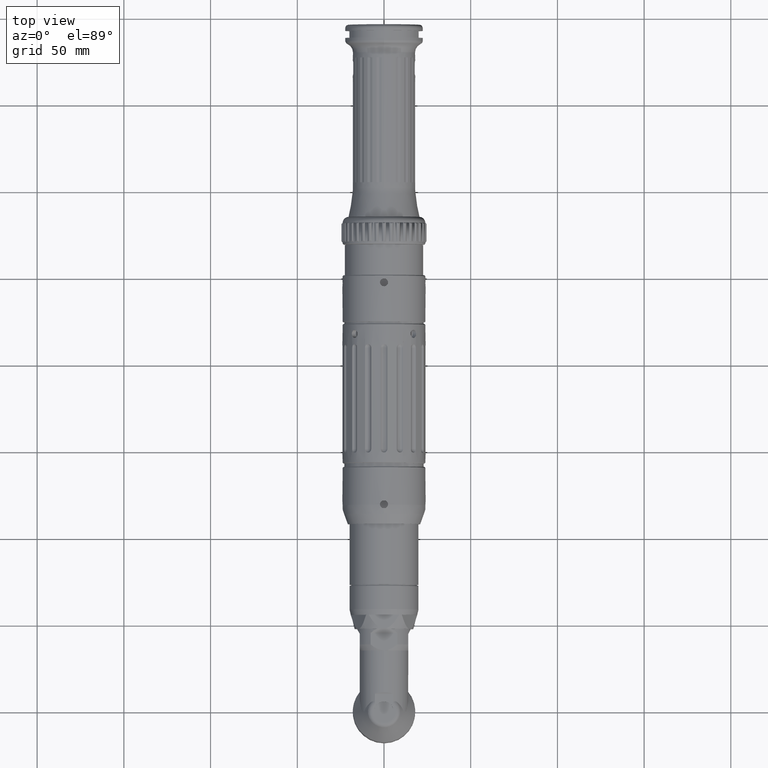
[diagram: clean part render]
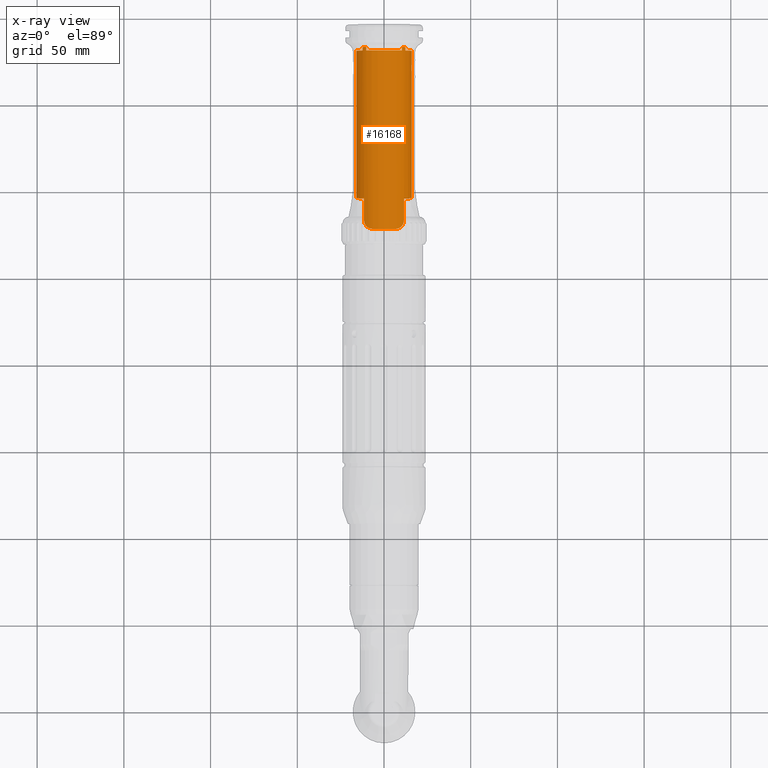
[diagram: x-ray — body ghosted, one internal face saturated and labeled with its STEP entity id]
A machine part, top view, then the same camera in x-ray: the body is ghosted and one INTERNAL B-rep face — a face not visible from any outside direction — is saturated and labeled: STEP entity #16168.
In plain terms, the highlighted cylindrical surface (bore or boss wall) has radius 16 mm, axis along (0, -1, -0).
Its self-contained STEP definition (entity closure, byte-faithful):
#253=ELLIPSE('',#17818,102.279251543994,16.);
#254=ELLIPSE('',#17819,102.279251543994,16.);
#255=ELLIPSE('',#17821,102.279251543994,16.);
#256=ELLIPSE('',#17823,102.279251543994,16.);
#653=LINE('',#25818,#1515);
#658=LINE('',#25850,#1520);
#929=LINE('',#27994,#1791);
#936=LINE('',#28006,#1798);
#942=LINE('',#28017,#1804);
#948=LINE('',#28028,#1810);
#963=LINE('',#28238,#1825);
#965=LINE('',#28242,#1827);
#967=LINE('',#28245,#1829);
#968=LINE('',#28249,#1830);
#972=LINE('',#28263,#1834);
#973=LINE('',#28288,#1835);
#974=LINE('',#28428,#1836);
#975=LINE('',#28431,#1837);
#976=LINE('',#28434,#1838);
#977=LINE('',#28437,#1839);
#978=LINE('',#28440,#1840);
#979=LINE('',#28466,#1841);
#980=LINE('',#28470,#1842);
#981=LINE('',#28496,#1843);
#1515=VECTOR('',#20614,10.);
#1520=VECTOR('',#20623,10.);
#1791=VECTOR('',#21666,10.);
#1798=VECTOR('',#21679,10.);
#1804=VECTOR('',#21691,10.);
#1810=VECTOR('',#21703,10.);
#1825=VECTOR('',#21810,10.);
#1827=VECTOR('',#21816,10.);
#1829=VECTOR('',#21820,10.);
#1830=VECTOR('',#21827,10.);
#1834=VECTOR('',#21845,10.);
#1835=VECTOR('',#21848,10.);
#1836=VECTOR('',#21853,10.);
#1837=VECTOR('',#21854,10.);
#1838=VECTOR('',#21855,10.);
#1839=VECTOR('',#21856,10.);
#1840=VECTOR('',#21857,10.);
#1841=VECTOR('',#21860,10.);
#1842=VECTOR('',#21863,10.);
#1843=VECTOR('',#21866,10.);
#2100=B_SPLINE_CURVE_WITH_KNOTS('',3,(#25829,#25830,#25831,#25832,#25833,
#25834,#25835,#25836,#25837,#25838,#25839,#25840),.UNSPECIFIED.,.F.,.F.,
(4,2,2,2,2,4),(1.60575531335487,1.70750990164224,1.8092644899296,2.01277366650434,
2.22696958037593,2.44116549424753),.UNSPECIFIED.);
#2102=B_SPLINE_CURVE_WITH_KNOTS('',3,(#25863,#25864,#25865,#25866,#25867,
#25868,#25869,#25870,#25871,#25872),.UNSPECIFIED.,.F.,.F.,(4,2,2,2,4),(-0.834926807319658,
-0.610737836602783,-0.386548865885909,-0.193274432942955,0.),
 .UNSPECIFIED.);
#2165=B_SPLINE_CURVE_WITH_KNOTS('',3,(#28265,#28266,#28267,#28268,#28269,
#28270,#28271,#28272,#28273,#28274),.UNSPECIFIED.,.F.,.F.,(4,2,2,2,4),(-0.47484788603311,
-0.350995445796024,-0.227143005558937,-0.113571502779469,0.),
 .UNSPECIFIED.);
#2166=B_SPLINE_CURVE_WITH_KNOTS('',3,(#28278,#28279,#28280,#28281,#28282,
#28283,#28284,#28285,#28286,#28287),.UNSPECIFIED.,.F.,.F.,(4,2,2,2,4),(0.934707650493438,
1.05123163150248,1.16775561251153,1.28867704578371,1.40959847905589),
 .UNSPECIFIED.);
#2167=B_SPLINE_CURVE_WITH_KNOTS('',3,(#28290,#28291,#28292,#28293,#28294,
#28295,#28296,#28297,#28298,#28299,#28300,#28301,#28302,#28303,#28304,#28305,
#28306,#28307,#28308,#28309,#28310,#28311,#28312,#28313,#28314,#28315,#28316,
#28317,#28318,#28319,#28320,#28321,#28322,#28323),.UNSPECIFIED.,.T.,.F.,
(4,2,2,2,2,2,2,2,2,2,2,2,2,2,2,2,4),(0.,0.0754224115710585,0.150844823142117,
0.226266604627874,0.30168838611363,0.377110167599387,0.452531949085144,
0.527954360656202,0.603376772227261,0.678799183798319,0.754221595369378,
0.829643376855137,0.905065158340896,0.980486939826654,1.05590872131241,
1.13133113288347,1.20675354445453),.UNSPECIFIED.);
#2168=B_SPLINE_CURVE_WITH_KNOTS('',3,(#28325,#28326,#28327,#28328,#28329,
#28330,#28331,#28332,#28333,#28334,#28335,#28336,#28337,#28338,#28339,#28340,
#28341,#28342,#28343,#28344,#28345,#28346,#28347,#28348,#28349,#28350,#28351,
#28352,#28353,#28354,#28355,#28356,#28357,#28358),.UNSPECIFIED.,.T.,.F.,
(4,2,2,2,2,2,2,2,2,2,2,2,2,2,2,2,4),(0.,0.0754224115710586,0.150844823142117,
0.226266604627874,0.301688386113631,0.377110167599387,0.452531949085144,
0.527954360656203,0.603376772227261,0.678799183798319,0.754221595369378,
0.829643376855136,0.905065158340895,0.980486939826654,1.05590872131241,
1.13133113288347,1.20675354445453),.UNSPECIFIED.);
#2169=B_SPLINE_CURVE_WITH_KNOTS('',3,(#28360,#28361,#28362,#28363,#28364,
#28365,#28366,#28367,#28368,#28369,#28370,#28371,#28372,#28373,#28374,#28375,
#28376,#28377,#28378,#28379,#28380,#28381,#28382,#28383,#28384,#28385,#28386,
#28387,#28388,#28389,#28390,#28391,#28392,#28393),.UNSPECIFIED.,.T.,.F.,
(4,2,2,2,2,2,2,2,2,2,2,2,2,2,2,2,4),(0.,0.0754224115710584,0.150844823142117,
0.226266604627875,0.301688386113634,0.377110167599393,0.452531949085151,
0.52795436065621,0.603376772227268,0.678799183798327,0.754221595369385,
0.829643376855142,0.905065158340899,0.980486939826655,1.05590872131241,
1.13133113288347,1.20675354445453),.UNSPECIFIED.);
#2170=B_SPLINE_CURVE_WITH_KNOTS('',3,(#28396,#28397,#28398,#28399,#28400,
#28401),.UNSPECIFIED.,.F.,.F.,(4,2,4),(3.7317463950236,4.13768239848054,
4.54361840193748),.UNSPECIFIED.);
#2171=B_SPLINE_CURVE_WITH_KNOTS('',3,(#28405,#28406,#28407,#28408,#28409,
#28410),.UNSPECIFIED.,.F.,.F.,(4,2,4),(-0.150361344986722,-0.111047292004066,
-0.088423393438636),.UNSPECIFIED.);
#2172=B_SPLINE_CURVE_WITH_KNOTS('',3,(#28412,#28413,#28414,#28415,#28416,
#28417),.UNSPECIFIED.,.F.,.F.,(4,2,4),(3.57354557210687,4.00814550472339,
4.44274543733976),.UNSPECIFIED.);
#2173=B_SPLINE_CURVE_WITH_KNOTS('',3,(#28419,#28420,#28421,#28422,#28423,
#28424),.UNSPECIFIED.,.F.,.F.,(4,2,4),(-0.0622957377689996,-0.042872646011125,
-0.000234606142089006),.UNSPECIFIED.);
#2174=B_SPLINE_CURVE_WITH_KNOTS('',3,(#28442,#28443,#28444,#28445,#28446,
#28447,#28448,#28449,#28450,#28451),.UNSPECIFIED.,.F.,.F.,(4,2,2,2,4),(0.,
0.0961295553740424,0.192259110748085,0.291039373597876,0.389819636447666),
 .UNSPECIFIED.);
#2175=B_SPLINE_CURVE_WITH_KNOTS('',3,(#28455,#28456,#28457,#28458,#28459,
#28460,#28461,#28462,#28463,#28464),.UNSPECIFIED.,.F.,.F.,(4,2,2,2,4),(-0.389804153258447,
-0.289329935856943,-0.18885571845544,-0.0944278592277199,0.),
 .UNSPECIFIED.);
#2176=B_SPLINE_CURVE_WITH_KNOTS('',3,(#28472,#28473,#28474,#28475,#28476,
#28477,#28478,#28479,#28480,#28481),.UNSPECIFIED.,.F.,.F.,(4,2,2,2,4),(-0.154578156929414,
-0.11544224055557,-0.0763063241817251,-0.0381531620908626,0.),
 .UNSPECIFIED.);
#2177=B_SPLINE_CURVE_WITH_KNOTS('',3,(#28485,#28486,#28487,#28488,#28489,
#28490,#28491,#28492,#28493,#28494),.UNSPECIFIED.,.F.,.F.,(4,2,2,2,4),(0.,
0.0381531620908622,0.0763063241817243,0.115442240555568,0.154578156929411),
 .UNSPECIFIED.);
#2346=CYLINDRICAL_SURFACE('',#17816,16.);
#2651=FACE_BOUND('',#4536,.T.);
#2652=FACE_BOUND('',#4537,.T.);
#2653=FACE_BOUND('',#4538,.T.);
#2654=FACE_BOUND('',#4539,.T.);
#2655=FACE_BOUND('',#4540,.T.);
#2656=FACE_BOUND('',#4541,.T.);
#2657=FACE_BOUND('',#4542,.T.);
#2658=FACE_BOUND('',#4543,.T.);
#2659=FACE_BOUND('',#4544,.T.);
#2660=FACE_BOUND('',#4545,.T.);
#3415=FACE_OUTER_BOUND('',#4535,.T.);
#4535=EDGE_LOOP('',(#12517,#12518,#12519,#12520,#12521,#12522,#12523,#12524,
#12525,#12526,#12527,#12528,#12529,#12530,#12531,#12532));
#4536=EDGE_LOOP('',(#12533,#12534,#12535,#12536,#12537,#12538,#12539,#12540,
#12541,#12542,#12543,#12544));
#4537=EDGE_LOOP('',(#12545));
#4538=EDGE_LOOP('',(#12546));
#4539=EDGE_LOOP('',(#12547));
#4540=EDGE_LOOP('',(#12548,#12549,#12550,#12551,#12552,#12553));
#4541=EDGE_LOOP('',(#12554,#12555));
#4542=EDGE_LOOP('',(#12556,#12557));
#4543=EDGE_LOOP('',(#12558,#12559));
#4544=EDGE_LOOP('',(#12560,#12561));
#4545=EDGE_LOOP('',(#12562,#12563,#12564,#12565,#12566,#12567,#12568,#12569,
#12570,#12571,#12572,#12573));
#5433=CIRCLE('',#17349,16.);
#5435=CIRCLE('',#17352,16.);
#5436=CIRCLE('',#17354,16.);
#5440=CIRCLE('',#17365,16.);
#5492=CIRCLE('',#17466,16.);
#5493=CIRCLE('',#17468,16.);
#5543=CIRCLE('',#17589,16.);
#5549=CIRCLE('',#17599,16.);
#5551=CIRCLE('',#17601,16.);
#5553=CIRCLE('',#17603,16.);
#5555=CIRCLE('',#17605,16.);
#5626=CIRCLE('',#17817,16.);
#5627=CIRCLE('',#17820,16.);
#5628=CIRCLE('',#17822,16.);
#6583=VERTEX_POINT('',#25770);
#6584=VERTEX_POINT('',#25772);
#6588=VERTEX_POINT('',#25782);
#6589=VERTEX_POINT('',#25784);
#6592=VERTEX_POINT('',#25791);
#6593=VERTEX_POINT('',#25793);
#6601=VERTEX_POINT('',#25816);
#6602=VERTEX_POINT('',#25817);
#6605=VERTEX_POINT('',#25828);
#6607=VERTEX_POINT('',#25848);
#6608=VERTEX_POINT('',#25849);
#6612=VERTEX_POINT('',#25862);
#6704=VERTEX_POINT('',#26229);
#6707=VERTEX_POINT('',#26237);
#6708=VERTEX_POINT('',#26239);
#6795=VERTEX_POINT('',#27333);
#6801=VERTEX_POINT('',#27353);
#6802=VERTEX_POINT('',#27354);
#6803=VERTEX_POINT('',#27356);
#6804=VERTEX_POINT('',#27358);
#6805=VERTEX_POINT('',#27360);
#6806=VERTEX_POINT('',#27362);
#6807=VERTEX_POINT('',#27364);
#6808=VERTEX_POINT('',#27366);
#6994=VERTEX_POINT('',#28262);
#6995=VERTEX_POINT('',#28264);
#6996=VERTEX_POINT('',#28275);
#6997=VERTEX_POINT('',#28277);
#6998=VERTEX_POINT('',#28289);
#6999=VERTEX_POINT('',#28324);
#7000=VERTEX_POINT('',#28359);
#7001=VERTEX_POINT('',#28394);
#7002=VERTEX_POINT('',#28395);
#7003=VERTEX_POINT('',#28402);
#7004=VERTEX_POINT('',#28404);
#7005=VERTEX_POINT('',#28411);
#7006=VERTEX_POINT('',#28418);
#7007=VERTEX_POINT('',#28426);
#7008=VERTEX_POINT('',#28427);
#7009=VERTEX_POINT('',#28429);
#7010=VERTEX_POINT('',#28430);
#7011=VERTEX_POINT('',#28432);
#7012=VERTEX_POINT('',#28433);
#7013=VERTEX_POINT('',#28435);
#7014=VERTEX_POINT('',#28436);
#7015=VERTEX_POINT('',#28438);
#7016=VERTEX_POINT('',#28439);
#7017=VERTEX_POINT('',#28441);
#7018=VERTEX_POINT('',#28452);
#7019=VERTEX_POINT('',#28454);
#7020=VERTEX_POINT('',#28465);
#7021=VERTEX_POINT('',#28467);
#7022=VERTEX_POINT('',#28469);
#7023=VERTEX_POINT('',#28471);
#7024=VERTEX_POINT('',#28482);
#7025=VERTEX_POINT('',#28484);
#7026=VERTEX_POINT('',#28495);
#8335=EDGE_CURVE('',#6583,#6584,#5433,.T.);
#8341=EDGE_CURVE('',#6588,#6589,#5435,.T.);
#8345=EDGE_CURVE('',#6592,#6593,#5436,.T.);
#8357=EDGE_CURVE('',#6601,#6602,#653,.T.);
#8362=EDGE_CURVE('',#6602,#6605,#2100,.T.);
#8365=EDGE_CURVE('',#6607,#6608,#658,.T.);
#8371=EDGE_CURVE('',#6612,#6607,#2102,.T.);
#8374=EDGE_CURVE('',#6605,#6612,#5440,.T.);
#8513=EDGE_CURVE('',#6601,#6704,#5492,.T.);
#8517=EDGE_CURVE('',#6707,#6708,#5493,.T.);
#8641=EDGE_CURVE('',#6795,#6608,#5543,.T.);
#8652=EDGE_CURVE('',#6803,#6801,#5549,.T.);
#8654=EDGE_CURVE('',#6805,#6804,#5551,.T.);
#8656=EDGE_CURVE('',#6807,#6806,#5553,.T.);
#8658=EDGE_CURVE('',#6802,#6808,#5555,.T.);
#8878=EDGE_CURVE('',#6803,#6593,#929,.T.);
#8885=EDGE_CURVE('',#6802,#6584,#936,.T.);
#8891=EDGE_CURVE('',#6807,#6589,#942,.T.);
#8897=EDGE_CURVE('',#6805,#6708,#948,.T.);
#8938=EDGE_CURVE('',#6801,#6583,#963,.T.);
#8940=EDGE_CURVE('',#6808,#6588,#965,.T.);
#8942=EDGE_CURVE('',#6806,#6707,#967,.T.);
#8943=EDGE_CURVE('',#6804,#6592,#968,.T.);
#8949=EDGE_CURVE('',#6994,#6704,#972,.T.);
#8950=EDGE_CURVE('',#6995,#6994,#2165,.T.);
#8951=EDGE_CURVE('',#6996,#6995,#5626,.T.);
#8952=EDGE_CURVE('',#6997,#6996,#2166,.T.);
#8953=EDGE_CURVE('',#6795,#6997,#973,.T.);
#8954=EDGE_CURVE('',#6998,#6998,#2167,.T.);
#8955=EDGE_CURVE('',#6999,#6999,#2168,.T.);
#8956=EDGE_CURVE('',#7000,#7000,#2169,.T.);
#8957=EDGE_CURVE('',#7001,#7002,#2170,.T.);
#8958=EDGE_CURVE('',#7003,#7001,#253,.T.);
#8959=EDGE_CURVE('',#7004,#7003,#2171,.T.);
#8960=EDGE_CURVE('',#7005,#7004,#2172,.T.);
#8961=EDGE_CURVE('',#7006,#7005,#2173,.T.);
#8962=EDGE_CURVE('',#7002,#7006,#254,.T.);
#8963=EDGE_CURVE('',#7007,#7008,#974,.T.);
#8964=EDGE_CURVE('',#7009,#7010,#975,.T.);
#8965=EDGE_CURVE('',#7011,#7012,#976,.T.);
#8966=EDGE_CURVE('',#7013,#7014,#977,.T.);
#8967=EDGE_CURVE('',#7015,#7016,#978,.T.);
#8968=EDGE_CURVE('',#7017,#7015,#2174,.F.);
#8969=EDGE_CURVE('',#7017,#7018,#5627,.T.);
#8970=EDGE_CURVE('',#7019,#7018,#2175,.F.);
#8971=EDGE_CURVE('',#7020,#7019,#979,.T.);
#8972=EDGE_CURVE('',#7021,#7020,#255,.T.);
#8973=EDGE_CURVE('',#7022,#7021,#980,.T.);
#8974=EDGE_CURVE('',#7023,#7022,#2176,.T.);
#8975=EDGE_CURVE('',#7024,#7023,#5628,.T.);
#8976=EDGE_CURVE('',#7025,#7024,#2177,.T.);
#8977=EDGE_CURVE('',#7026,#7025,#981,.T.);
#8978=EDGE_CURVE('',#7016,#7026,#256,.T.);
#12517=ORIENTED_EDGE('',*,*,#8943,.F.);
#12518=ORIENTED_EDGE('',*,*,#8654,.F.);
#12519=ORIENTED_EDGE('',*,*,#8897,.T.);
#12520=ORIENTED_EDGE('',*,*,#8517,.F.);
#12521=ORIENTED_EDGE('',*,*,#8942,.F.);
#12522=ORIENTED_EDGE('',*,*,#8656,.F.);
#12523=ORIENTED_EDGE('',*,*,#8891,.T.);
#12524=ORIENTED_EDGE('',*,*,#8341,.F.);
#12525=ORIENTED_EDGE('',*,*,#8940,.F.);
#12526=ORIENTED_EDGE('',*,*,#8658,.F.);
#12527=ORIENTED_EDGE('',*,*,#8885,.T.);
#12528=ORIENTED_EDGE('',*,*,#8335,.F.);
#12529=ORIENTED_EDGE('',*,*,#8938,.F.);
#12530=ORIENTED_EDGE('',*,*,#8652,.F.);
#12531=ORIENTED_EDGE('',*,*,#8878,.T.);
#12532=ORIENTED_EDGE('',*,*,#8345,.F.);
#12533=ORIENTED_EDGE('',*,*,#8949,.F.);
#12534=ORIENTED_EDGE('',*,*,#8950,.F.);
#12535=ORIENTED_EDGE('',*,*,#8951,.F.);
#12536=ORIENTED_EDGE('',*,*,#8952,.F.);
#12537=ORIENTED_EDGE('',*,*,#8953,.F.);
#12538=ORIENTED_EDGE('',*,*,#8641,.T.);
#12539=ORIENTED_EDGE('',*,*,#8365,.F.);
#12540=ORIENTED_EDGE('',*,*,#8371,.F.);
#12541=ORIENTED_EDGE('',*,*,#8374,.F.);
#12542=ORIENTED_EDGE('',*,*,#8362,.F.);
#12543=ORIENTED_EDGE('',*,*,#8357,.F.);
#12544=ORIENTED_EDGE('',*,*,#8513,.T.);
#12545=ORIENTED_EDGE('',*,*,#8954,.F.);
#12546=ORIENTED_EDGE('',*,*,#8955,.F.);
#12547=ORIENTED_EDGE('',*,*,#8956,.F.);
#12548=ORIENTED_EDGE('',*,*,#8957,.F.);
#12549=ORIENTED_EDGE('',*,*,#8958,.F.);
#12550=ORIENTED_EDGE('',*,*,#8959,.F.);
#12551=ORIENTED_EDGE('',*,*,#8960,.F.);
#12552=ORIENTED_EDGE('',*,*,#8961,.F.);
#12553=ORIENTED_EDGE('',*,*,#8962,.F.);
#12554=ORIENTED_EDGE('',*,*,#8963,.T.);
#12555=ORIENTED_EDGE('',*,*,#8963,.F.);
#12556=ORIENTED_EDGE('',*,*,#8964,.T.);
#12557=ORIENTED_EDGE('',*,*,#8964,.F.);
#12558=ORIENTED_EDGE('',*,*,#8965,.T.);
#12559=ORIENTED_EDGE('',*,*,#8965,.F.);
#12560=ORIENTED_EDGE('',*,*,#8966,.T.);
#12561=ORIENTED_EDGE('',*,*,#8966,.F.);
#12562=ORIENTED_EDGE('',*,*,#8967,.F.);
#12563=ORIENTED_EDGE('',*,*,#8968,.F.);
#12564=ORIENTED_EDGE('',*,*,#8969,.T.);
#12565=ORIENTED_EDGE('',*,*,#8970,.F.);
#12566=ORIENTED_EDGE('',*,*,#8971,.F.);
#12567=ORIENTED_EDGE('',*,*,#8972,.F.);
#12568=ORIENTED_EDGE('',*,*,#8973,.F.);
#12569=ORIENTED_EDGE('',*,*,#8974,.F.);
#12570=ORIENTED_EDGE('',*,*,#8975,.F.);
#12571=ORIENTED_EDGE('',*,*,#8976,.F.);
#12572=ORIENTED_EDGE('',*,*,#8977,.F.);
#12573=ORIENTED_EDGE('',*,*,#8978,.F.);
#16168=ADVANCED_FACE('',(#3415,#2651,#2652,#2653,#2654,#2655,#2656,#2657,
#2658,#2659,#2660),#2346,.T.);
#17349=AXIS2_PLACEMENT_3D('',#25773,#20575,#20576);
#17352=AXIS2_PLACEMENT_3D('',#25785,#20585,#20586);
#17354=AXIS2_PLACEMENT_3D('',#25794,#20592,#20593);
#17365=AXIS2_PLACEMENT_3D('',#25886,#20633,#20634);
#17466=AXIS2_PLACEMENT_3D('',#26231,#20905,#20906);
#17468=AXIS2_PLACEMENT_3D('',#26240,#20912,#20913);
#17589=AXIS2_PLACEMENT_3D('',#27334,#21188,#21189);
#17599=AXIS2_PLACEMENT_3D('',#27357,#21213,#21214);
#17601=AXIS2_PLACEMENT_3D('',#27361,#21217,#21218);
#17603=AXIS2_PLACEMENT_3D('',#27365,#21221,#21222);
#17605=AXIS2_PLACEMENT_3D('',#27368,#21225,#21226);
#17816=AXIS2_PLACEMENT_3D('',#28261,#21843,#21844);
#17817=AXIS2_PLACEMENT_3D('',#28276,#21846,#21847);
#17818=AXIS2_PLACEMENT_3D('',#28403,#21849,#21850);
#17819=AXIS2_PLACEMENT_3D('',#28425,#21851,#21852);
#17820=AXIS2_PLACEMENT_3D('',#28453,#21858,#21859);
#17821=AXIS2_PLACEMENT_3D('',#28468,#21861,#21862);
#17822=AXIS2_PLACEMENT_3D('',#28483,#21864,#21865);
#17823=AXIS2_PLACEMENT_3D('',#28497,#21867,#21868);
#20575=DIRECTION('center_axis',(-5.20242265254917E-16,1.,-2.08452620493441E-17));
#20576=DIRECTION('ref_axis',(1.,5.20242265254917E-16,7.00741530932701E-15));
#20585=DIRECTION('center_axis',(-5.20242265254917E-16,1.,-2.08452620493441E-17));
#20586=DIRECTION('ref_axis',(1.,5.20242265254917E-16,7.00741530932701E-15));
#20592=DIRECTION('center_axis',(-5.20242265254917E-16,1.,-2.08452620493441E-17));
#20593=DIRECTION('ref_axis',(1.,5.20242265254917E-16,7.00741530932701E-15));
#20614=DIRECTION('',(-2.4980018054066E-15,-1.,1.98160042783579E-17));
#20623=DIRECTION('',(2.4980018054066E-15,1.,-1.98160042783579E-17));
#20633=DIRECTION('center_axis',(5.20242265254916E-16,-1.,1.43309941964079E-16));
#20634=DIRECTION('ref_axis',(0.677799585003534,-1.70771423896677E-15,-0.735246708642097));
#20905=DIRECTION('center_axis',(-5.20242265254917E-16,1.,-2.08452620493441E-17));
#20906=DIRECTION('ref_axis',(1.,5.20242265254918E-16,7.00741530932701E-15));
#20912=DIRECTION('center_axis',(-5.20242265254917E-16,1.,-2.08452620493441E-17));
#20913=DIRECTION('ref_axis',(1.,5.20242265254917E-16,7.00741530932701E-15));
#21188=DIRECTION('center_axis',(-5.20242265254917E-16,1.,-2.08452620493441E-17));
#21189=DIRECTION('ref_axis',(1.,5.20242265254918E-16,7.00741530932701E-15));
#21213=DIRECTION('center_axis',(-6.34403086073544E-16,1.,-1.11372105191445E-15));
#21214=DIRECTION('ref_axis',(-1.,-6.34403086073555E-16,-9.79526914692857E-15));
#21217=DIRECTION('center_axis',(-6.34403086073544E-16,1.,-1.11372105191445E-15));
#21218=DIRECTION('ref_axis',(-1.,-6.34403086073555E-16,-9.79526914692857E-15));
#21221=DIRECTION('center_axis',(-6.34403086073544E-16,1.,-1.11372105191445E-15));
#21222=DIRECTION('ref_axis',(-1.,-6.34403086073555E-16,-9.79526914692857E-15));
#21225=DIRECTION('center_axis',(-6.34403086073544E-16,1.,-1.11372105191445E-15));
#21226=DIRECTION('ref_axis',(-1.,-6.34403086073555E-16,-9.79526914692857E-15));
#21666=DIRECTION('',(6.34403086073544E-16,-1.,1.11372105191445E-15));
#21679=DIRECTION('',(6.34403086073544E-16,-1.,1.11372105191445E-15));
#21691=DIRECTION('',(6.34403086073544E-16,-1.,1.11372105191445E-15));
#21703=DIRECTION('',(6.34403086073544E-16,-1.,1.11372105191445E-15));
#21810=DIRECTION('',(6.34403086073544E-16,-1.,1.11372105191445E-15));
#21816=DIRECTION('',(6.34403086073544E-16,-1.,1.11372105191445E-15));
#21820=DIRECTION('',(6.34403086073544E-16,-1.,1.11372105191445E-15));
#21827=DIRECTION('',(6.34403086073544E-16,-1.,1.11372105191445E-15));
#21843=DIRECTION('center_axis',(6.31264567717444E-16,-1.,-5.54715594812069E-16));
#21844=DIRECTION('ref_axis',(0.625000000000008,8.27565077233623E-16,-0.780624749799794));
#21845=DIRECTION('',(2.4980018054066E-15,1.,-1.98160042783579E-17));
#21846=DIRECTION('center_axis',(5.20242265254916E-16,-1.,1.43309941964079E-16));
#21847=DIRECTION('ref_axis',(0.677799585003534,-1.70771423896677E-15,-0.735246708642097));
#21848=DIRECTION('',(-2.4980018054066E-15,-1.,1.98160042783579E-17));
#21849=DIRECTION('center_axis',(9.5759215944629E-15,0.156434465040232,-0.987688340595138));
#21850=DIRECTION('ref_axis',(-1.03398506299655E-15,-0.987688340595138,-0.156434465040232));
#21851=DIRECTION('center_axis',(9.5759215944629E-15,0.156434465040232,-0.987688340595138));
#21852=DIRECTION('ref_axis',(-1.03398506299655E-15,-0.987688340595138,-0.156434465040232));
#21853=DIRECTION('',(2.4980018054066E-15,1.,-1.98160042783579E-17));
#21854=DIRECTION('',(2.4980018054066E-15,1.,-1.98160042783579E-17));
#21855=DIRECTION('',(2.4980018054066E-15,1.,-1.98160042783579E-17));
#21856=DIRECTION('',(2.4980018054066E-15,1.,-1.98160042783579E-17));
#21857=DIRECTION('',(-2.4980018054066E-15,-1.,1.98160042783579E-17));
#21858=DIRECTION('center_axis',(-6.31264567717442E-16,1.,3.46548777694852E-16));
#21859=DIRECTION('ref_axis',(0.625000000000008,8.27565077233623E-16,-0.780624749799794));
#21860=DIRECTION('',(2.4980018054066E-15,1.,-1.98160042783579E-17));
#21861=DIRECTION('center_axis',(9.5759215944629E-15,0.156434465040232,-0.987688340595138));
#21862=DIRECTION('ref_axis',(-1.03398506299655E-15,-0.987688340595138,-0.156434465040232));
#21863=DIRECTION('',(-2.4980018054066E-15,-1.,1.98160042783579E-17));
#21864=DIRECTION('center_axis',(-6.31264567717443E-16,1.,4.38777166887088E-16));
#21865=DIRECTION('ref_axis',(0.677799585003534,-1.70771423896677E-15,-0.735246708642097));
#21866=DIRECTION('',(2.4980018054066E-15,1.,-1.98160042783579E-17));
#21867=DIRECTION('center_axis',(9.5759215944629E-15,0.156434465040232,-0.987688340595138));
#21868=DIRECTION('ref_axis',(-1.03398506299655E-15,-0.987688340595138,-0.156434465040232));
#25770=CARTESIAN_POINT('',(-10.2032201542896,381.,12.3245404978489));
#25772=CARTESIAN_POINT('',(10.2032201542884,381.,12.324540497849));
#25773=CARTESIAN_POINT('Origin',(-4.92986346772526E-13,381.,3.32269560655429E-13));
#25782=CARTESIAN_POINT('',(12.3245404978481,381.,10.2032201542894));
#25784=CARTESIAN_POINT('',(12.3245404978482,381.,-10.2032201542886));
#25785=CARTESIAN_POINT('Origin',(-4.92986346772526E-13,381.,3.32269560655429E-13));
#25791=CARTESIAN_POINT('',(-12.324540497849,381.,-10.2032201542887));
#25793=CARTESIAN_POINT('',(-12.3245404978492,381.,10.2032201542892));
#25794=CARTESIAN_POINT('Origin',(-4.92986346772526E-13,381.,3.32269560655429E-13));
#25816=CARTESIAN_POINT('',(11.4999999999995,296.,11.1242977306439));
#25817=CARTESIAN_POINT('',(11.4999999999995,283.,11.1242977306445));
#25818=CARTESIAN_POINT('',(11.4999999999995,249.6,11.1242977306444));
#25828=CARTESIAN_POINT('',(6.49999999999947,278.,14.620191517214));
#25829=CARTESIAN_POINT('Ctrl Pts',(11.4999999999995,283.,11.1242977306445));
#25830=CARTESIAN_POINT('Ctrl Pts',(11.4999999999995,282.660818039042,11.1242977306445));
#25831=CARTESIAN_POINT('Ctrl Pts',(11.4650320707962,282.318952894746,11.1607644758732));
#25832=CARTESIAN_POINT('Ctrl Pts',(11.3273132141444,281.653740068695,11.3005132351584));
#25833=CARTESIAN_POINT('Ctrl Pts',(11.2246342403341,281.330322907195,11.4035352909766));
#25834=CARTESIAN_POINT('Ctrl Pts',(10.831751570615,280.416222721069,11.7815648977297));
#25835=CARTESIAN_POINT('Ctrl Pts',(10.452363670411,279.881295858546,12.1257793258613));
#25836=CARTESIAN_POINT('Ctrl Pts',(9.59681544697061,279.025747635106,12.8147741275754));
#25837=CARTESIAN_POINT('Ctrl Pts',(9.04808154719494,278.647266529712,13.2154848488521));
#25838=CARTESIAN_POINT('Ctrl Pts',(7.82643503638386,278.133833251522,13.9736800899716));
#25839=CARTESIAN_POINT('Ctrl Pts',(7.15241360062599,278.,14.3301345505129));
#25840=CARTESIAN_POINT('Ctrl Pts',(6.49999999999945,278.,14.620191517214));
#25848=CARTESIAN_POINT('',(-11.5000000000005,283.,11.1242977306427));
#25849=CARTESIAN_POINT('',(-11.5000000000005,296.,11.1242977306437));
#25850=CARTESIAN_POINT('',(-11.5000000000005,249.6,11.1242977306428));
#25862=CARTESIAN_POINT('',(-6.50000000000055,278.,14.6201915172132));
#25863=CARTESIAN_POINT('Ctrl Pts',(-6.50000000000055,278.,14.6201915172132));
#25864=CARTESIAN_POINT('Ctrl Pts',(-7.18285118498546,278.,14.316602286034));
#25865=CARTESIAN_POINT('Ctrl Pts',(-7.88502155180736,278.146254728041,13.9421615899834));
#25866=CARTESIAN_POINT('Ctrl Pts',(-9.14910839943554,278.703565189769,13.1472905418734));
#25867=CARTESIAN_POINT('Ctrl Pts',(-9.7123084279714,279.113343163423,12.7280069866421));
#25868=CARTESIAN_POINT('Ctrl Pts',(-10.5402051944443,280.001228160428,12.0478277680261));
#25869=CARTESIAN_POINT('Ctrl Pts',(-10.8890288096601,280.522140379029,11.7277740666516));
#25870=CARTESIAN_POINT('Ctrl Pts',(-11.3691335240498,281.698120185142,11.262967755358));
#25871=CARTESIAN_POINT('Ctrl Pts',(-11.5000000000005,282.35575189019,11.1242977306427));
#25872=CARTESIAN_POINT('Ctrl Pts',(-11.5000000000005,283.,11.1242977306427));
#25886=CARTESIAN_POINT('Origin',(3.49720252756922E-13,278.,1.22533848887956E-13));
#26229=CARTESIAN_POINT('',(8.24999999999966,296.,-13.7090298708548));
#26231=CARTESIAN_POINT('Origin',(-4.48765754225858E-13,296.,3.34041407929623E-13));
#26237=CARTESIAN_POINT('',(10.2032201542886,381.,-12.3245404978482));
#26239=CARTESIAN_POINT('',(-10.2032201542894,381.,-12.3245404978484));
#26240=CARTESIAN_POINT('Origin',(-4.92986346772526E-13,381.,3.32269560655429E-13));
#27333=CARTESIAN_POINT('',(-8.25000000000036,296.,-13.7090298708549));
#27334=CARTESIAN_POINT('Origin',(-4.48765754225858E-13,296.,3.34041407929623E-13));
#27353=CARTESIAN_POINT('',(-10.2032201542893,383.,12.3245404978488));
#27354=CARTESIAN_POINT('',(10.2032201542887,383.,12.324540497849));
#27356=CARTESIAN_POINT('',(-12.3245404978489,383.,10.2032201542891));
#27357=CARTESIAN_POINT('Origin',(-1.97505798303934E-13,383.,2.25126042724554E-13));
#27358=CARTESIAN_POINT('',(-12.3245404978487,383.,-10.2032201542889));
#27360=CARTESIAN_POINT('',(-10.2032201542891,383.,-12.3245404978485));
#27361=CARTESIAN_POINT('Origin',(-1.97505798303934E-13,383.,2.25126042724554E-13));
#27362=CARTESIAN_POINT('',(10.2032201542889,383.,-12.3245404978483));
#27364=CARTESIAN_POINT('',(12.3245404978485,383.,-10.2032201542886));
#27365=CARTESIAN_POINT('Origin',(-1.97505798303934E-13,383.,2.25126042724554E-13));
#27366=CARTESIAN_POINT('',(12.3245404978483,383.,10.2032201542893));
#27368=CARTESIAN_POINT('Origin',(-1.97505798303934E-13,383.,2.25126042724554E-13));
#27994=CARTESIAN_POINT('',(-12.3245404978489,383.,10.2032201542891));
#28006=CARTESIAN_POINT('',(10.2032201542887,383.,12.324540497849));
#28017=CARTESIAN_POINT('',(12.3245404978485,383.,-10.2032201542886));
#28028=CARTESIAN_POINT('',(-10.2032201542891,383.,-12.3245404978485));
#28238=CARTESIAN_POINT('',(-10.2032201542893,383.,12.3245404978488));
#28242=CARTESIAN_POINT('',(12.3245404978483,383.,10.2032201542893));
#28245=CARTESIAN_POINT('',(10.2032201542889,383.,-12.3245404978483));
#28249=CARTESIAN_POINT('',(-12.3245404978487,383.,-10.2032201542889));
#28261=CARTESIAN_POINT('Origin',(-4.5270505531481E-13,319.3,3.40265059809027E-13));
#28262=CARTESIAN_POINT('',(8.24999999999966,286.4,-13.7090298708555));
#28263=CARTESIAN_POINT('',(8.24999999999967,249.6,-13.7090298708554));
#28264=CARTESIAN_POINT('',(5.24999999999967,283.4,-15.114149000192));
#28265=CARTESIAN_POINT('Ctrl Pts',(5.24999999999966,283.4,-15.114149000192));
#28266=CARTESIAN_POINT('Ctrl Pts',(5.63998421578731,283.4,-14.9786853936827));
#28267=CARTESIAN_POINT('Ctrl Pts',(6.05023630634152,283.480106209873,-14.8176361751954));
#28268=CARTESIAN_POINT('Ctrl Pts',(6.80032059418953,283.799487803484,-14.4887315176153));
#28269=CARTESIAN_POINT('Ctrl Pts',(7.14052453005487,284.038528908822,-14.3214967922721));
#28270=CARTESIAN_POINT('Ctrl Pts',(7.656873549801,284.574179882808,-14.0516885503619));
#28271=CARTESIAN_POINT('Ctrl Pts',(7.87718063040835,284.899747978583,-13.9276501483855));
#28272=CARTESIAN_POINT('Ctrl Pts',(8.17391918139052,285.623128643239,-13.7555974001175));
#28273=CARTESIAN_POINT('Ctrl Pts',(8.24999999999968,286.021428324068,-13.7090298708555));
#28274=CARTESIAN_POINT('Ctrl Pts',(8.24999999999968,286.4,-13.7090298708555));
#28275=CARTESIAN_POINT('',(-5.25000000000035,283.4,-15.1141490001915));
#28276=CARTESIAN_POINT('Origin',(3.63209462506118E-13,283.4,1.22426842464853E-13));
#28277=CARTESIAN_POINT('',(-8.25000000000036,286.4,-13.7090298708546));
#28278=CARTESIAN_POINT('Ctrl Pts',(-8.25000000000037,286.4,-13.7090298708546));
#28279=CARTESIAN_POINT('Ctrl Pts',(-8.25000000000038,286.01158672997,-13.7090298708546));
#28280=CARTESIAN_POINT('Ctrl Pts',(-8.16998441411793,285.603946092893,-13.7580358834792));
#28281=CARTESIAN_POINT('Ctrl Pts',(-7.85938867723914,284.866669177915,-13.9377977074791));
#28282=CARTESIAN_POINT('Ctrl Pts',(-7.62915105833927,284.536510371219,-14.0669983407934));
#28283=CARTESIAN_POINT('Ctrl Pts',(-7.10375945778598,284.011118770666,-14.3397168496269));
#28284=CARTESIAN_POINT('Ctrl Pts',(-6.76836691449983,283.782087418896,-14.5034677145497));
#28285=CARTESIAN_POINT('Ctrl Pts',(-6.03203495362625,283.476418987755,-14.8248413402601));
#28286=CARTESIAN_POINT('Ctrl Pts',(-5.63075511662379,283.4,-14.98189118255));
#28287=CARTESIAN_POINT('Ctrl Pts',(-5.25000000000036,283.4,-15.1141490001915));
#28288=CARTESIAN_POINT('',(-8.25000000000033,249.6,-13.7090298708547));
#28289=CARTESIAN_POINT('',(1.99999999999998,363.000000000021,-15.8745078663875));
#28290=CARTESIAN_POINT('Ctrl Pts',(1.99999999999998,363.000000000021,-15.8745078663875));
#28291=CARTESIAN_POINT('Ctrl Pts',(1.99999999999998,362.748591961451,-15.8745078663875));
#28292=CARTESIAN_POINT('Ctrl Pts',(1.94970213956441,362.48060795086,-15.8810964899009));
#28293=CARTESIAN_POINT('Ctrl Pts',(1.74551349551441,361.987928236266,-15.9048340676628));
#28294=CARTESIAN_POINT('Ctrl Pts',(1.59163697568676,361.763209850961,-15.9216336684365));
#28295=CARTESIAN_POINT('Ctrl Pts',(1.2367916312698,361.408364506544,-15.9531211010569));
#28296=CARTESIAN_POINT('Ctrl Pts',(1.01207260158625,361.254486825489,-15.9698632499716));
#28297=CARTESIAN_POINT('Ctrl Pts',(0.519390705117192,361.050297329677,-15.9934691817416));
#28298=CARTESIAN_POINT('Ctrl Pts',(0.251405938285828,361.000000000021,-15.9999999999999));
#28299=CARTESIAN_POINT('Ctrl Pts',(-0.251405938285883,361.000000000021,
-15.9999999999999));
#28300=CARTESIAN_POINT('Ctrl Pts',(-0.519390705117248,361.050297329677,
-15.9934691817415));
#28301=CARTESIAN_POINT('Ctrl Pts',(-1.0120726015863,361.254486825489,-15.9698632499715));
#28302=CARTESIAN_POINT('Ctrl Pts',(-1.23679163126986,361.408364506544,-15.9531211010568));
#28303=CARTESIAN_POINT('Ctrl Pts',(-1.59163697568681,361.763209850961,-15.9216336684364));
#28304=CARTESIAN_POINT('Ctrl Pts',(-1.7455134955145,361.987928236266,-15.9048340676627));
#28305=CARTESIAN_POINT('Ctrl Pts',(-1.94970213956448,362.48060795086,-15.8810964899008));
#28306=CARTESIAN_POINT('Ctrl Pts',(-2.00000000000002,362.748591961451,-15.8745078663873));
#28307=CARTESIAN_POINT('Ctrl Pts',(-2.00000000000003,363.251408038591,-15.8745078663873));
#28308=CARTESIAN_POINT('Ctrl Pts',(-1.9497021395645,363.519392049181,-15.8810964899008));
#28309=CARTESIAN_POINT('Ctrl Pts',(-1.74551349551453,364.012071763775,-15.9048340676627));
#28310=CARTESIAN_POINT('Ctrl Pts',(-1.59163697568681,364.23679014908,-15.9216336684364));
#28311=CARTESIAN_POINT('Ctrl Pts',(-1.23679163126986,364.591635493497,-15.9531211010568));
#28312=CARTESIAN_POINT('Ctrl Pts',(-1.01207260158634,364.745513174553,-15.9698632499715));
#28313=CARTESIAN_POINT('Ctrl Pts',(-0.519390705117278,364.949702670365,
-15.9934691817415));
#28314=CARTESIAN_POINT('Ctrl Pts',(-0.251405938285881,365.000000000021,
-15.9999999999999));
#28315=CARTESIAN_POINT('Ctrl Pts',(0.251405938285844,365.000000000021,-15.9999999999999));
#28316=CARTESIAN_POINT('Ctrl Pts',(0.519390705117241,364.949702670365,-15.9934691817416));
#28317=CARTESIAN_POINT('Ctrl Pts',(1.01207260158631,364.745513174553,-15.9698632499716));
#28318=CARTESIAN_POINT('Ctrl Pts',(1.23679163126982,364.591635493497,-15.9531211010569));
#28319=CARTESIAN_POINT('Ctrl Pts',(1.59163697568677,364.23679014908,-15.9216336684365));
#28320=CARTESIAN_POINT('Ctrl Pts',(1.74551349551452,364.012071763775,-15.9048340676628));
#28321=CARTESIAN_POINT('Ctrl Pts',(1.94970213956447,363.519392049181,-15.8810964899009));
#28322=CARTESIAN_POINT('Ctrl Pts',(1.99999999999997,363.251408038591,-15.8745078663875));
#28323=CARTESIAN_POINT('Ctrl Pts',(1.99999999999997,363.000000000021,-15.8745078663875));
#28324=CARTESIAN_POINT('',(15.8745078663881,371.000000000023,2.00000000000037));
#28325=CARTESIAN_POINT('Ctrl Pts',(15.8745078663881,371.000000000023,2.00000000000037));
#28326=CARTESIAN_POINT('Ctrl Pts',(15.8745078663881,370.748591961453,2.00000000000036));
#28327=CARTESIAN_POINT('Ctrl Pts',(15.8810964899015,370.480607950862,1.94970213956481));
#28328=CARTESIAN_POINT('Ctrl Pts',(15.9048340676634,369.987928236268,1.74551349551482));
#28329=CARTESIAN_POINT('Ctrl Pts',(15.9216336684371,369.763209850964,1.59163697568715));
#28330=CARTESIAN_POINT('Ctrl Pts',(15.9531211010576,369.408364506546,1.2367916312702));
#28331=CARTESIAN_POINT('Ctrl Pts',(15.9698632499723,369.254486825491,1.01207260158667));
#28332=CARTESIAN_POINT('Ctrl Pts',(15.9934691817422,369.050297329679,0.519390705117612));
#28333=CARTESIAN_POINT('Ctrl Pts',(16.0000000000006,369.000000000023,0.251405938286223));
#28334=CARTESIAN_POINT('Ctrl Pts',(16.0000000000006,369.000000000023,-0.251405938285489));
#28335=CARTESIAN_POINT('Ctrl Pts',(15.9934691817423,369.050297329679,-0.519390705116912));
#28336=CARTESIAN_POINT('Ctrl Pts',(15.9698632499723,369.254486825491,-1.01207260158596));
#28337=CARTESIAN_POINT('Ctrl Pts',(15.9531211010576,369.408364506547,-1.23679163126946));
#28338=CARTESIAN_POINT('Ctrl Pts',(15.9216336684372,369.763209850964,-1.59163697568642));
#28339=CARTESIAN_POINT('Ctrl Pts',(15.9048340676635,369.987928236268,-1.74551349551409));
#28340=CARTESIAN_POINT('Ctrl Pts',(15.8810964899016,370.480607950862,-1.94970213956408));
#28341=CARTESIAN_POINT('Ctrl Pts',(15.8745078663882,370.748591961453,-1.99999999999963));
#28342=CARTESIAN_POINT('Ctrl Pts',(15.8745078663882,371.251408038593,-1.99999999999963));
#28343=CARTESIAN_POINT('Ctrl Pts',(15.8810964899016,371.519392049183,-1.9497021395641));
#28344=CARTESIAN_POINT('Ctrl Pts',(15.9048340676635,372.012071763777,-1.74551349551412));
#28345=CARTESIAN_POINT('Ctrl Pts',(15.9216336684372,372.236790149082,-1.59163697568642));
#28346=CARTESIAN_POINT('Ctrl Pts',(15.9531211010576,372.591635493499,-1.23679163126946));
#28347=CARTESIAN_POINT('Ctrl Pts',(15.9698632499723,372.745513174555,-1.01207260158593));
#28348=CARTESIAN_POINT('Ctrl Pts',(15.9934691817423,372.949702670367,-0.519390705116862));
#28349=CARTESIAN_POINT('Ctrl Pts',(16.0000000000006,373.000000000023,-0.25140593828549));
#28350=CARTESIAN_POINT('Ctrl Pts',(16.0000000000006,373.000000000023,0.251405938286234));
#28351=CARTESIAN_POINT('Ctrl Pts',(15.9934691817423,372.949702670367,0.519390705117612));
#28352=CARTESIAN_POINT('Ctrl Pts',(15.9698632499723,372.745513174555,1.01207260158668));
#28353=CARTESIAN_POINT('Ctrl Pts',(15.9531211010576,372.591635493499,1.23679163127021));
#28354=CARTESIAN_POINT('Ctrl Pts',(15.9216336684371,372.236790149082,1.59163697568716));
#28355=CARTESIAN_POINT('Ctrl Pts',(15.9048340676634,372.012071763777,1.74551349551486));
#28356=CARTESIAN_POINT('Ctrl Pts',(15.8810964899015,371.519392049183,1.94970213956484));
#28357=CARTESIAN_POINT('Ctrl Pts',(15.8745078663881,371.251408038593,2.00000000000038));
#28358=CARTESIAN_POINT('Ctrl Pts',(15.8745078663881,371.000000000023,2.00000000000037));
#28359=CARTESIAN_POINT('',(-15.874507866387,371.000000000023,-1.99999999999991));
#28360=CARTESIAN_POINT('Ctrl Pts',(-15.874507866387,371.000000000023,-1.9999999999999));
#28361=CARTESIAN_POINT('Ctrl Pts',(-15.874507866387,370.748591961453,-1.99999999999991));
#28362=CARTESIAN_POINT('Ctrl Pts',(-15.8810964899004,370.480607950862,-1.94970213956437));
#28363=CARTESIAN_POINT('Ctrl Pts',(-15.9048340676623,369.987928236268,-1.74551349551439));
#28364=CARTESIAN_POINT('Ctrl Pts',(-15.921633668436,369.763209850964,-1.59163697568669));
#28365=CARTESIAN_POINT('Ctrl Pts',(-15.9531211010564,369.408364506547,-1.23679163126974));
#28366=CARTESIAN_POINT('Ctrl Pts',(-15.9698632499711,369.254486825491,-1.01207260158621));
#28367=CARTESIAN_POINT('Ctrl Pts',(-15.9934691817411,369.050297329679,-0.519390705117144));
#28368=CARTESIAN_POINT('Ctrl Pts',(-15.9999999999994,369.000000000023,-0.251405938285766));
#28369=CARTESIAN_POINT('Ctrl Pts',(-15.9999999999994,369.000000000023,0.251405938285958));
#28370=CARTESIAN_POINT('Ctrl Pts',(-15.9934691817411,369.050297329679,0.519390705117336));
#28371=CARTESIAN_POINT('Ctrl Pts',(-15.9698632499711,369.254486825491,1.0120726015864));
#28372=CARTESIAN_POINT('Ctrl Pts',(-15.9531211010564,369.408364506547,1.23679163126993));
#28373=CARTESIAN_POINT('Ctrl Pts',(-15.921633668436,369.763209850964,1.59163697568689));
#28374=CARTESIAN_POINT('Ctrl Pts',(-15.9048340676623,369.987928236268,1.74551349551459));
#28375=CARTESIAN_POINT('Ctrl Pts',(-15.8810964899004,370.480607950862,1.94970213956457));
#28376=CARTESIAN_POINT('Ctrl Pts',(-15.874507866387,370.748591961453,2.0000000000001));
#28377=CARTESIAN_POINT('Ctrl Pts',(-15.874507866387,371.251408038593,2.0000000000001));
#28378=CARTESIAN_POINT('Ctrl Pts',(-15.8810964899004,371.519392049183,1.94970213956455));
#28379=CARTESIAN_POINT('Ctrl Pts',(-15.9048340676623,372.012071763777,1.74551349551456));
#28380=CARTESIAN_POINT('Ctrl Pts',(-15.921633668436,372.236790149082,1.59163697568688));
#28381=CARTESIAN_POINT('Ctrl Pts',(-15.9531211010564,372.591635493499,1.23679163126993));
#28382=CARTESIAN_POINT('Ctrl Pts',(-15.9698632499711,372.745513174555,1.01207260158639));
#28383=CARTESIAN_POINT('Ctrl Pts',(-15.9934691817411,372.949702670367,0.519390705117335));
#28384=CARTESIAN_POINT('Ctrl Pts',(-15.9999999999994,373.000000000023,0.251405938285958));
#28385=CARTESIAN_POINT('Ctrl Pts',(-15.9999999999994,373.000000000023,-0.251405938285753));
#28386=CARTESIAN_POINT('Ctrl Pts',(-15.9934691817411,372.949702670367,-0.519390705117155));
#28387=CARTESIAN_POINT('Ctrl Pts',(-15.9698632499711,372.745513174555,-1.01207260158619));
#28388=CARTESIAN_POINT('Ctrl Pts',(-15.9531211010564,372.591635493499,-1.23679163126973));
#28389=CARTESIAN_POINT('Ctrl Pts',(-15.921633668436,372.236790149082,-1.59163697568668));
#28390=CARTESIAN_POINT('Ctrl Pts',(-15.9048340676623,372.012071763777,-1.74551349551439));
#28391=CARTESIAN_POINT('Ctrl Pts',(-15.8810964899004,371.519392049183,-1.94970213956436));
#28392=CARTESIAN_POINT('Ctrl Pts',(-15.874507866387,371.251408038593,-1.99999999999988));
#28393=CARTESIAN_POINT('Ctrl Pts',(-15.874507866387,371.000000000023,-1.99999999999989));
#28394=CARTESIAN_POINT('',(4.19579251557385,285.080342061169,-15.4400558666818));
#28395=CARTESIAN_POINT('',(-4.19579251557281,285.080342061169,-15.4400558666818));
#28396=CARTESIAN_POINT('Ctrl Pts',(4.19579251557384,285.080342061169,-15.4400558666818));
#28397=CARTESIAN_POINT('Ctrl Pts',(2.79544799314587,285.120350976203,-15.8205956210169));
#28398=CARTESIAN_POINT('Ctrl Pts',(1.35312001152367,285.144066389092,-15.9999999999999));
#28399=CARTESIAN_POINT('Ctrl Pts',(-1.35312001152262,285.144066389092,-15.9999999999999));
#28400=CARTESIAN_POINT('Ctrl Pts',(-2.79544799314483,285.120350976203,-15.8205956210169));
#28401=CARTESIAN_POINT('Ctrl Pts',(-4.19579251557281,285.080342061169,-15.4400558666818));
#28402=CARTESIAN_POINT('',(5.06271717785097,286.735477819246,-15.1779081159781));
#28403=CARTESIAN_POINT('Origin',(6.10923856943191E-13,382.565018176099,
1.20461788040412E-13));
#28404=CARTESIAN_POINT('',(4.49999999999972,286.579659502388,-15.3541525327842));
#28405=CARTESIAN_POINT('Ctrl Pts',(4.49999999999971,286.579659502388,-15.3541525327842));
#28406=CARTESIAN_POINT('Ctrl Pts',(4.625891487269,286.575695552088,-15.3172562148987));
#28407=CARTESIAN_POINT('Ctrl Pts',(4.75119416714157,286.595540988899,-15.2787923803936));
#28408=CARTESIAN_POINT('Ctrl Pts',(4.9370837238996,286.663606576348,-15.219404889167));
#28409=CARTESIAN_POINT('Ctrl Pts',(5.00201100627955,286.696009700076,-15.1981571631641));
#28410=CARTESIAN_POINT('Ctrl Pts',(5.06271717785101,286.735477819246,-15.1779081159787));
#28411=CARTESIAN_POINT('',(-4.50000000000028,286.579659502388,-15.3541525327838));
#28412=CARTESIAN_POINT('Ctrl Pts',(-4.50000000000028,286.579659502388,-15.3541525327838));
#28413=CARTESIAN_POINT('Ctrl Pts',(-3.00488024121164,286.626736398095,-15.7923427162006));
#28414=CARTESIAN_POINT('Ctrl Pts',(-1.44866644205455,286.655819163124,-15.9999999999999));
#28415=CARTESIAN_POINT('Ctrl Pts',(1.44866644205509,286.655819163124,-15.9999999999999));
#28416=CARTESIAN_POINT('Ctrl Pts',(3.00488024121158,286.626736398095,-15.7923427162007));
#28417=CARTESIAN_POINT('Ctrl Pts',(4.49999999999972,286.579659502388,-15.3541525327842));
#28418=CARTESIAN_POINT('',(-5.06271717784918,286.735477819244,-15.1779081159785));
#28419=CARTESIAN_POINT('Ctrl Pts',(-5.06271717784921,286.735477819244,-15.1779081159791));
#28420=CARTESIAN_POINT('Ctrl Pts',(-5.01073061905484,286.701678756569,-15.1952486639791));
#28421=CARTESIAN_POINT('Ctrl Pts',(-4.95559670569576,286.673027424601,-15.2133398732041));
#28422=CARTESIAN_POINT('Ctrl Pts',(-4.77185449581362,286.598992808212,-15.2724257505234));
#28423=CARTESIAN_POINT('Ctrl Pts',(-4.63631614286882,286.57536731054,-15.314200953457));
#28424=CARTESIAN_POINT('Ctrl Pts',(-4.50000000000028,286.579659502388,-15.3541525327838));
#28425=CARTESIAN_POINT('Origin',(6.10923856943191E-13,382.565018176099,
1.20461788040412E-13));
#28426=CARTESIAN_POINT('',(-2.85028308714056E-13,301.95,-15.9999999999997));
#28427=CARTESIAN_POINT('',(-2.85564883596615E-13,302.8,-15.9999999999997));
#28428=CARTESIAN_POINT('',(4.35501307834231E-13,249.6,-15.9999999999997));
#28429=CARTESIAN_POINT('',(5.75889009298071E-13,305.8,-15.9999999999997));
#28430=CARTESIAN_POINT('',(5.78012310832673E-13,306.65,-15.9999999999997));
#28431=CARTESIAN_POINT('',(4.35501307834231E-13,249.6,-15.9999999999997));
#28432=CARTESIAN_POINT('',(-2.7704281193243E-13,289.3,-15.9999999999997));
#28433=CARTESIAN_POINT('',(-2.77674076500147E-13,290.3,-15.9999999999997));
#28434=CARTESIAN_POINT('',(4.3550130783423E-13,249.6,-15.9999999999997));
#28435=CARTESIAN_POINT('',(5.52157992146716E-13,296.3,-15.9999999999997));
#28436=CARTESIAN_POINT('',(5.54655993952124E-13,297.3,-15.9999999999997));
#28437=CARTESIAN_POINT('',(4.3550130783423E-13,249.6,-15.9999999999997));
#28438=CARTESIAN_POINT('',(6.9999999999997,313.8,-14.3874945699377));
#28439=CARTESIAN_POINT('',(6.99999999999971,291.725952542771,-14.3874945699384));
#28440=CARTESIAN_POINT('',(6.99999999999973,249.6,-14.3874945699383));
#28441=CARTESIAN_POINT('',(4.4999999999997,316.3,-15.3541525327837));
#28442=CARTESIAN_POINT('Ctrl Pts',(6.99999999999969,313.8,-14.3874945699378));
#28443=CARTESIAN_POINT('Ctrl Pts',(6.99999999999969,314.120431851247,-14.3874945699378));
#28444=CARTESIAN_POINT('Ctrl Pts',(6.93460298310231,314.458702326083,-14.419832110859));
#28445=CARTESIAN_POINT('Ctrl Pts',(6.67686100895273,315.073757207769,-14.5409698116177));
#28446=CARTESIAN_POINT('Ctrl Pts',(6.48472737957399,315.350806526358,-14.6288726687044));
#28447=CARTESIAN_POINT('Ctrl Pts',(6.04482398932763,315.790709916605,-14.816167402124));
#28448=CARTESIAN_POINT('Ctrl Pts',(5.76463410701314,315.982032602855,-14.9290241989832));
#28449=CARTESIAN_POINT('Ctrl Pts',(5.15031204312524,316.236731435507,-15.1519324104652));
#28450=CARTESIAN_POINT('Ctrl Pts',(4.81597650479641,316.3,-15.261546036362));
#28451=CARTESIAN_POINT('Ctrl Pts',(4.4999999999997,316.3,-15.3541525327837));
#28452=CARTESIAN_POINT('',(-4.5000000000003,316.3,-15.3541525327838));
#28453=CARTESIAN_POINT('Origin',(-4.50811261611658E-13,316.3,3.40519538001929E-13));
#28454=CARTESIAN_POINT('',(-7.00000000000031,313.8,-14.3874945699379));
#28455=CARTESIAN_POINT('Ctrl Pts',(-4.5000000000003,316.3,-15.3541525327838));
#28456=CARTESIAN_POINT('Ctrl Pts',(-4.82139509574922,316.3,-15.2599579539699));
#28457=CARTESIAN_POINT('Ctrl Pts',(-5.16104655851327,316.234573411126,-15.1483760940406));
#28458=CARTESIAN_POINT('Ctrl Pts',(-5.78351780041845,315.971799289163,-14.9218169714051));
#28459=CARTESIAN_POINT('Ctrl Pts',(-6.0665540411937,315.774564324702,-14.8073041783419));
#28460=CARTESIAN_POINT('Ctrl Pts',(-6.50101945289836,315.328690212878,-14.6215305139662));
#28461=CARTESIAN_POINT('Ctrl Pts',(-6.68727031628953,315.054387154876,-14.5361424807449));
#28462=CARTESIAN_POINT('Ctrl Pts',(-6.93686683288314,314.447547551061,-14.4186997212171));
#28463=CARTESIAN_POINT('Ctrl Pts',(-7.00000000000031,314.114759530759,-14.3874945699379));
#28464=CARTESIAN_POINT('Ctrl Pts',(-7.00000000000031,313.8,-14.3874945699379));
#28465=CARTESIAN_POINT('',(-7.00000000000029,291.725952542776,-14.3874945699377));
#28466=CARTESIAN_POINT('',(-7.00000000000027,249.6,-14.3874945699378));
#28467=CARTESIAN_POINT('',(-5.50000000000029,287.701032985827,-15.0249792013164));
#28468=CARTESIAN_POINT('Origin',(6.10923856943191E-13,382.565018176099,
1.20461788040412E-13));
#28469=CARTESIAN_POINT('',(-5.5000000000003,313.8,-15.0249792013163));
#28470=CARTESIAN_POINT('',(-5.50000000000026,249.6,-15.0249792013164));
#28471=CARTESIAN_POINT('',(-4.5000000000003,314.8,-15.3541525327837));
#28472=CARTESIAN_POINT('Ctrl Pts',(-4.5000000000003,314.8,-15.3541525327837));
#28473=CARTESIAN_POINT('Ctrl Pts',(-4.6251872561491,314.8,-15.3174626111833));
#28474=CARTESIAN_POINT('Ctrl Pts',(-4.75858873770994,314.775120276681,-15.2765353811391));
#28475=CARTESIAN_POINT('Ctrl Pts',(-5.00472245958003,314.673488934616,-15.1976792020925));
#28476=CARTESIAN_POINT('Ctrl Pts',(-5.11747870711609,314.596734855257,-15.1598283793054));
#28477=CARTESIAN_POINT('Ctrl Pts',(-5.29448417655043,314.419729385823,-15.0989064682513));
#28478=CARTESIAN_POINT('Ctrl Pts',(-5.37144807339104,314.308310789999,-15.0715138422573));
#28479=CARTESIAN_POINT('Ctrl Pts',(-5.47423229268553,314.062055347809,-15.0344858487822));
#28480=CARTESIAN_POINT('Ctrl Pts',(-5.5000000000003,313.927177206969,-15.0249792013163));
#28481=CARTESIAN_POINT('Ctrl Pts',(-5.5000000000003,313.8,-15.0249792013163));
#28482=CARTESIAN_POINT('',(4.4999999999997,314.8,-15.3541525327842));
#28483=CARTESIAN_POINT('Origin',(4.41646719195885E-13,314.8,1.21804619930512E-13));
#28484=CARTESIAN_POINT('',(5.4999999999997,313.8,-15.0249792013169));
#28485=CARTESIAN_POINT('Ctrl Pts',(5.4999999999997,313.8,-15.0249792013169));
#28486=CARTESIAN_POINT('Ctrl Pts',(5.4999999999997,313.927177206969,-15.0249792013169));
#28487=CARTESIAN_POINT('Ctrl Pts',(5.47423229268494,314.06205534781,-15.0344858487827));
#28488=CARTESIAN_POINT('Ctrl Pts',(5.37144807339044,314.308310789999,-15.0715138422578));
#28489=CARTESIAN_POINT('Ctrl Pts',(5.29448417654983,314.419729385823,-15.0989064682518));
#28490=CARTESIAN_POINT('Ctrl Pts',(5.1174787071155,314.596734855257,-15.1598283793059));
#28491=CARTESIAN_POINT('Ctrl Pts',(5.00472245957942,314.673488934616,-15.197679202093));
#28492=CARTESIAN_POINT('Ctrl Pts',(4.75858873770934,314.775120276681,-15.2765353811395));
#28493=CARTESIAN_POINT('Ctrl Pts',(4.62518725614851,314.8,-15.3174626111837));
#28494=CARTESIAN_POINT('Ctrl Pts',(4.4999999999997,314.8,-15.3541525327842));
#28495=CARTESIAN_POINT('',(5.49999999999971,287.701032985823,-15.0249792013168));
#28496=CARTESIAN_POINT('',(5.49999999999974,249.6,-15.0249792013168));
#28497=CARTESIAN_POINT('Origin',(6.10923856943191E-13,382.565018176099,
1.20461788040412E-13));